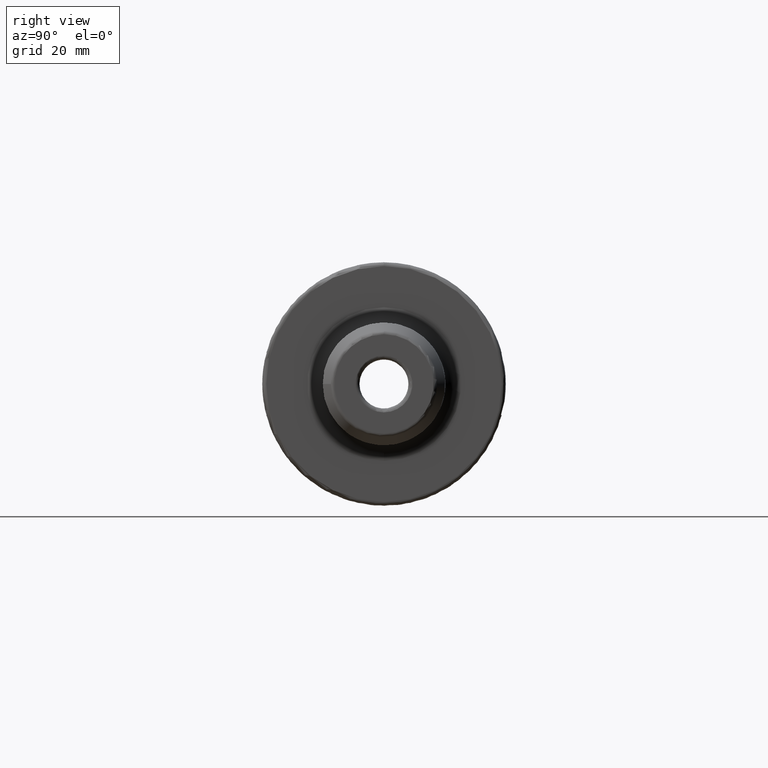
[diagram: clean part render]
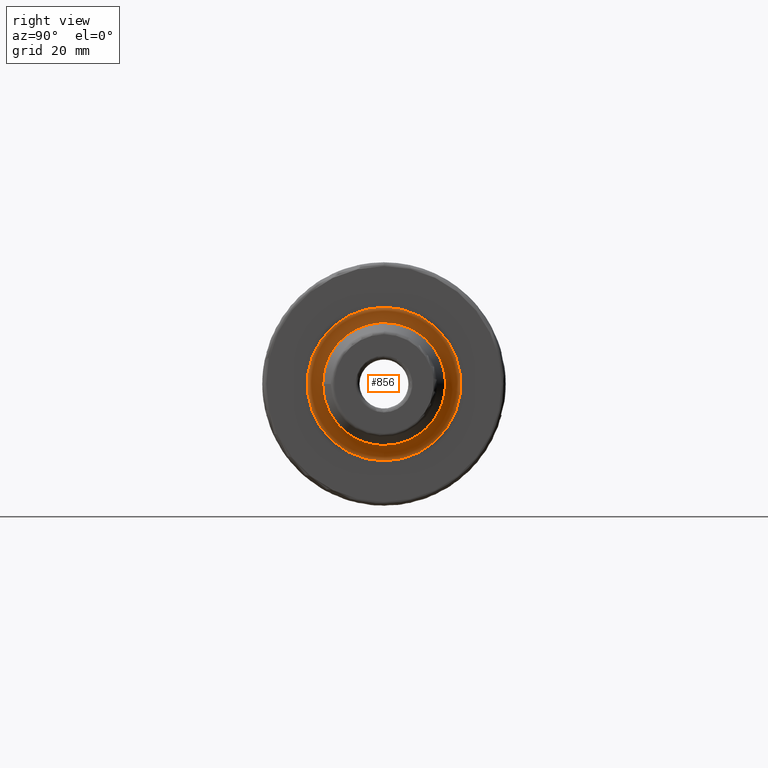
[diagram: same view with one face highlighted and labeled with its STEP entity id]
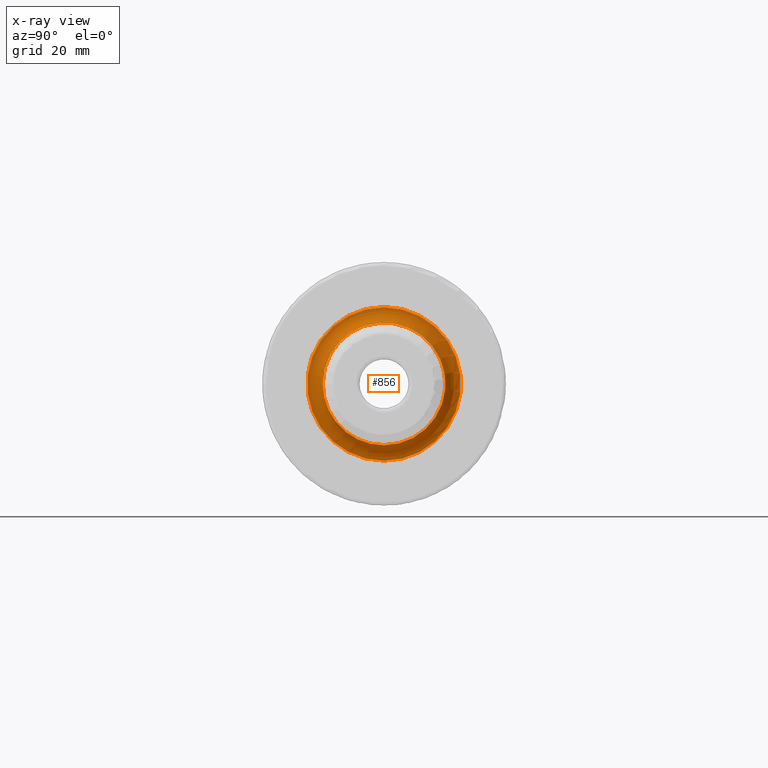
[diagram: x-ray of the same camera — body ghosted, the highlighted face saturated]
A machine part, right view. The second image highlights one B-rep face of the part: STEP entity #856.
The next image is the same camera in x-ray: the body ghosted, the highlighted face saturated — about 1% of this face is hidden behind the body in this view.
In plain terms, the highlighted toroidal blend (fillet) surface has major radius 19.875 mm and minor (blend) radius 4 mm.
Its self-contained STEP definition (entity closure, byte-faithful):
#187=FACE_OUTER_BOUND('',#242,.T.);
#242=EDGE_LOOP('',(#615,#616,#617,#618,#619));
#307=CIRCLE('',#945,15.875);
#308=CIRCLE('',#946,15.875);
#309=CIRCLE('',#948,4.);
#310=CIRCLE('',#949,19.875);
#369=VERTEX_POINT('',#1393);
#370=VERTEX_POINT('',#1395);
#374=VERTEX_POINT('',#1445);
#462=EDGE_CURVE('',#370,#369,#307,.T.);
#463=EDGE_CURVE('',#369,#370,#308,.T.);
#467=EDGE_CURVE('',#370,#374,#309,.T.);
#468=EDGE_CURVE('',#374,#374,#310,.T.);
#615=ORIENTED_EDGE('',*,*,#463,.T.);
#616=ORIENTED_EDGE('',*,*,#467,.T.);
#617=ORIENTED_EDGE('',*,*,#468,.T.);
#618=ORIENTED_EDGE('',*,*,#467,.F.);
#619=ORIENTED_EDGE('',*,*,#462,.T.);
#842=TOROIDAL_SURFACE('',#947,19.875,4.);
#856=ADVANCED_FACE('',(#187),#842,.F.);
#945=AXIS2_PLACEMENT_3D('',#1396,#1086,#1087);
#946=AXIS2_PLACEMENT_3D('',#1397,#1088,#1089);
#947=AXIS2_PLACEMENT_3D('',#1444,#1090,#1091);
#948=AXIS2_PLACEMENT_3D('',#1446,#1092,#1093);
#949=AXIS2_PLACEMENT_3D('',#1447,#1094,#1095);
#1086=DIRECTION('center_axis',(-1.,0.,0.));
#1087=DIRECTION('ref_axis',(0.,-1.,-1.22464679914735E-16));
#1088=DIRECTION('center_axis',(-1.,0.,0.));
#1089=DIRECTION('ref_axis',(0.,-1.,-1.22464679914735E-16));
#1090=DIRECTION('center_axis',(-1.,0.,0.));
#1091=DIRECTION('ref_axis',(0.,0.,1.));
#1092=DIRECTION('center_axis',(0.,-1.,1.22464679914735E-16));
#1093=DIRECTION('ref_axis',(0.,-1.22464679914735E-16,-1.));
#1094=DIRECTION('center_axis',(1.,0.,0.));
#1095=DIRECTION('ref_axis',(0.,-1.,-1.22464679914735E-16));
#1393=CARTESIAN_POINT('',(31.,-15.875,-1.94412679364642E-15));
#1395=CARTESIAN_POINT('',(31.,-1.94412679364642E-15,-15.875));
#1396=CARTESIAN_POINT('Origin',(31.,0.,0.));
#1397=CARTESIAN_POINT('Origin',(31.,0.,0.));
#1444=CARTESIAN_POINT('Origin',(31.,0.,0.));
#1445=CARTESIAN_POINT('',(27.,-2.43398551330536E-15,-19.875));
#1446=CARTESIAN_POINT('Origin',(31.,-2.43398551330536E-15,-19.875));
#1447=CARTESIAN_POINT('Origin',(27.,0.,0.));